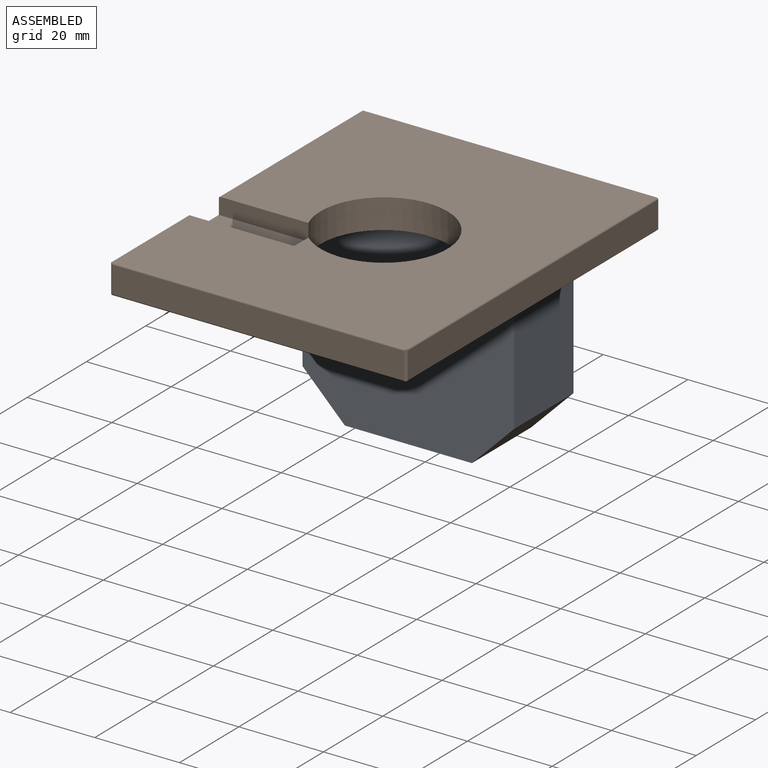
[diagram: assembled view]
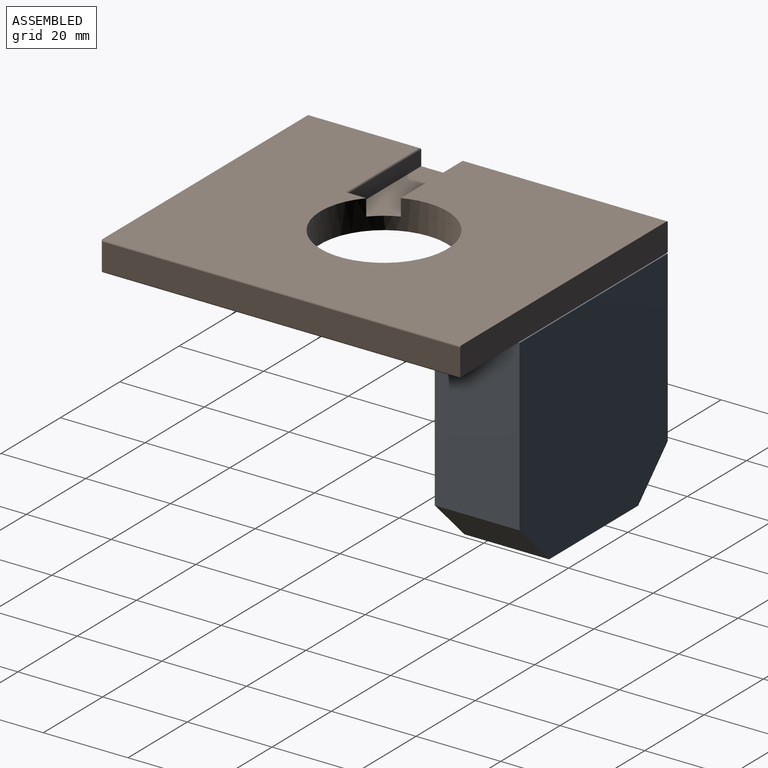
[diagram: assembled view, second angle]
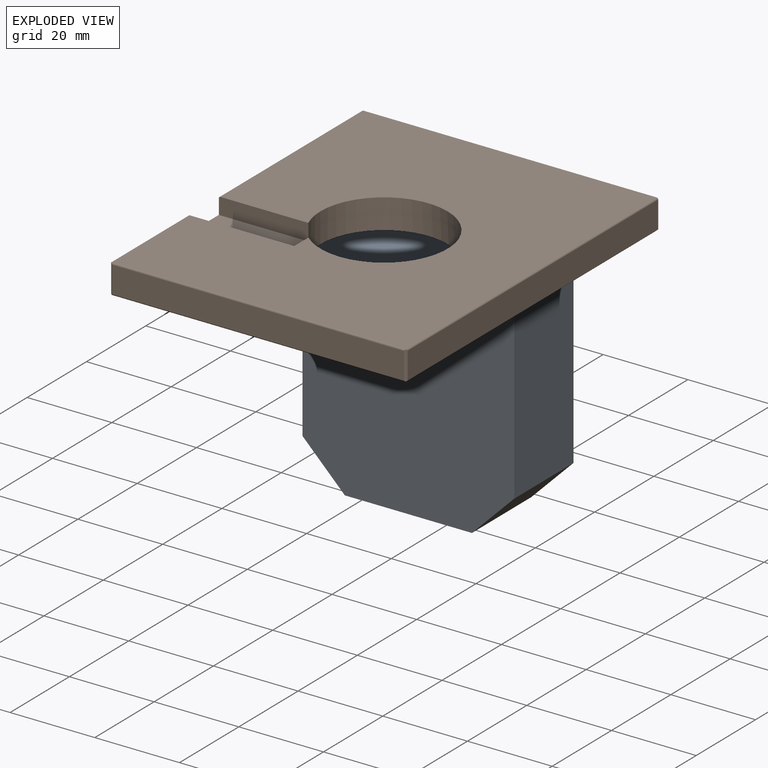
[diagram: exploded view]
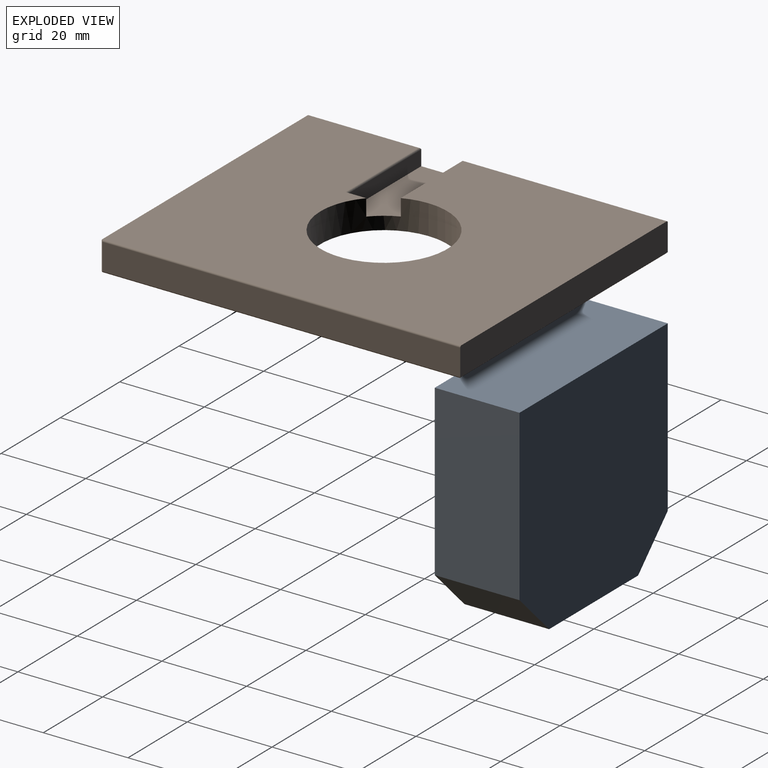
[diagram: exploded view, second angle]
ASSEMBLY  parts=2 mates=3
PART A: 8 faces, bbox 50x50x20 mm
  f0: plane 30x20mm, normal (0,1,0), area 600mm2, adj f4,f5,f6,f7
  f1: plane 40x20mm, normal (-1,0,0), area 800mm2, adj f2,f4,f5,f7
  f2: plane 50x20mm, normal (0,-1,0), area 1000mm2, adj f1,f3,f4,f5
  f3: plane 40x20mm, normal (1,0,0), area 800mm2, adj f2,f4,f5,f6
  f4: plane 50x50mm, normal (0,0,1), area 2400mm2, adj f0,f1,f2,f3,f6,f7
  f5: plane 50x50mm, normal (0,0,-1), area 2400mm2, adj f0,f1,f2,f3,f6,f7
  f6: plane 20x10mm, normal (0.71,0.71,0), area 282.8mm2, adj f0,f3,f4,f5
  f7: plane 20x10mm, normal (-0.71,0.71,0), area 282.8mm2, adj f0,f1,f4,f5
PART B: 22 faces, bbox 70x85x7 mm
  f0: plane 6.92x0.5mm, normal (0.71,-0.71,0), area 4.7mm2, adj f4,f5,f13,f15,f17,f18
  f1: plane 6.92x0.5mm, normal (-0.71,-0.71,0), area 4.7mm2, adj f3,f4,f13,f14,f18,f19
  f2: plane 84.6x69.2mm, normal (0,0,1), area 4903.9mm2, adj f6,f8,f11,f12,f17,f18,f19,f20
  f3: plane 84.5x6.3mm, normal (-1,0,0), area 497mm2, adj f1,f6,f8,f9,f10,f14,f19,f21
  f4: plane 69x6.3mm, normal (0,-1,0), area 434.7mm2, adj f0,f1,f13,f18
  f5: plane 84.5x6.3mm, normal (1,0,0), area 532.4mm2, adj f0,f6,f15,f17
  f6: plane 70x6.7mm, normal (0,1,0), area 468.9mm2, adj f2,f3,f5,f16,f17,f21
  f7: plane 84.4x69.4mm, normal (0,0,-1), area 5150.5mm2, adj f12,f13,f14,f15,f16
  f8: plane 21.13x3.94mm, normal (0,-1,0), area 83.1mm2, adj f2,f3,f10,f12,f21
  f9: plane 25x3.54mm, normal (0,1,0), area 88.4mm2, adj f3,f10,f11,f20
  f10: plane 25x10mm, normal (0,0,1), area 237.7mm2, adj f3,f8,f9,f11,f12
  f11: plane 4.94x3.94mm, normal (-1,0,0), area 17.9mm2, adj f2,f9,f10,f12,f20
  f12: cylinder r=15mm len=30mm, axis (0,0,-1), area 633.2mm2, adj f2,f7,f8,f10,f11
  f13: plane 69.5x0.3mm, normal (0,-0.71,-0.71), area 29.4mm2, adj f0,f1,f4,f7,f14,f15
  f14: plane 84.75x0.3mm, normal (-0.71,0,-0.71), area 35.8mm2, adj f1,f3,f7,f13,f16
  f15: plane 84.75x0.3mm, normal (0.71,0,-0.71), area 35.8mm2, adj f0,f5,f7,f13,f16
  f16: plane 70x0.3mm, normal (0,0.71,-0.71), area 29.6mm2, adj f6,f7,f14,f15
  f17: cylinder r=0.4mm len=84.75mm, axis (0,-1,0), area 53.2mm2, adj f0,f2,f5,f6,f18
  f18: cylinder r=0.4mm len=69.5mm, axis (-1,0,0), area 43.5mm2, adj f0,f1,f2,f4,f17,f19
  f19: cylinder r=0.4mm len=26.53mm, axis (0,1,0), area 16.5mm2, adj f1,f2,f3,f18,f20
  f20: cylinder r=0.4mm len=25mm, axis (-1,0,0), area 15.6mm2, adj f2,f9,f11,f19
  f21: cylinder r=0.4mm len=48.22mm, axis (0,1,0), area 30.3mm2, adj f2,f3,f6,f8
PLACE A rot(axis=(0,-0.71,0.71),180deg) t=(58.34,35.27,-13.93)mm
PLACE B t=(8.34,-49.73,-13.93)mm fixed
MATE planar A.f2 <-> B.f12  axis (0,0,1) through (33.34,25.27,-13.93)mm
MATE planar A.f5 <-> B.f6  axis (0,1,0) through (33.34,35.27,-38.03)mm
MATE planar B.f3 <-> A.f3  axis (-1,0,0) through (8.34,35.27,-10.48)mm
